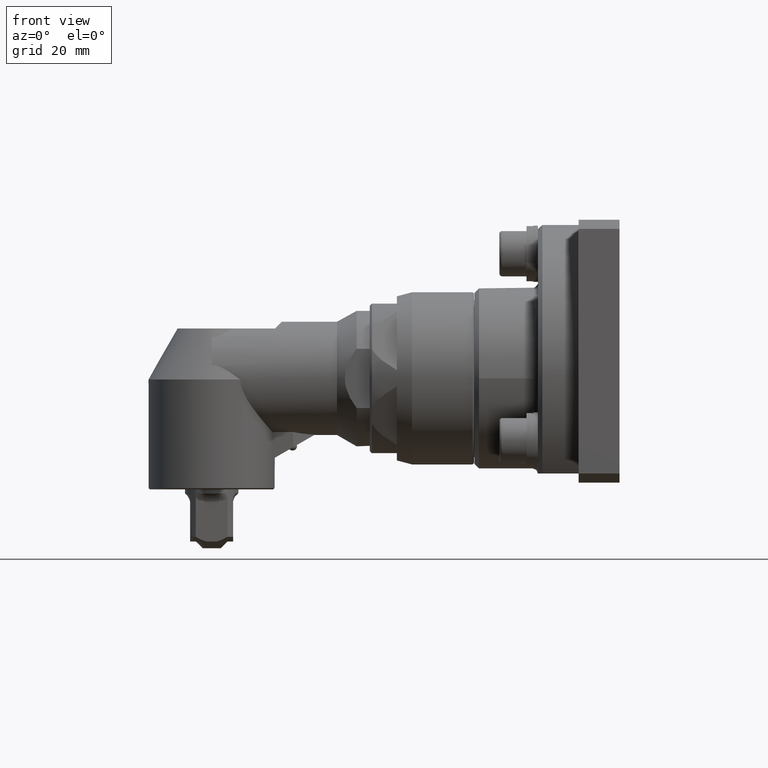
[diagram: clean part render]
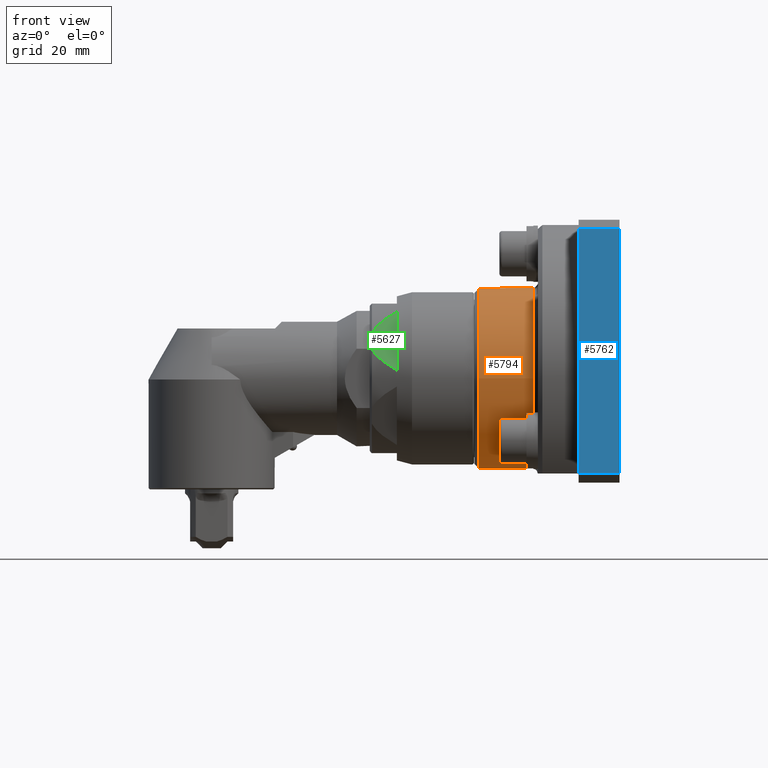
[diagram: same view with three faces highlighted in distinct colors, each labeled with its STEP entity id]
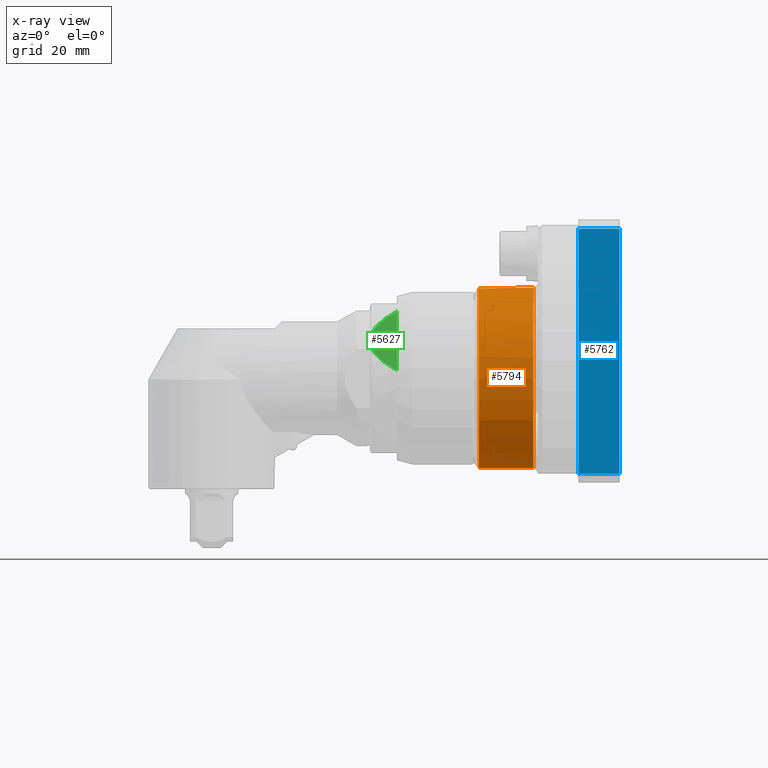
[diagram: x-ray of the same camera — body ghosted, the three highlighted faces saturated]
A machine part, front view with three faces highlighted in distinct colors.
The next image is the same camera in x-ray (body ghosted, the three faces saturated) — at least one of them is partly hidden behind the body in this view.
Their STEP definitions:

[orange] entity #5794 — the highlighted cylindrical surface (bore or boss wall) has radius 20 mm, axis along (1, 0, -0).
#547=LINE('',#10879,#888);
#888=VECTOR('',#8192,20.);
#980=CYLINDRICAL_SURFACE('',#6503,20.);
#1348=FACE_OUTER_BOUND('',#1726,.T.);
#1726=EDGE_LOOP('',(#5191,#5192,#5193,#5194,#5195,#5196,#5197));
#2120=CIRCLE('',#6499,20.);
#2122=CIRCLE('',#6501,20.);
#2123=CIRCLE('',#6502,20.);
#2124=CIRCLE('',#6504,20.);
#2125=CIRCLE('',#6505,20.);
#2695=VERTEX_POINT('',#10870);
#2696=VERTEX_POINT('',#10871);
#2697=VERTEX_POINT('',#10874);
#2698=VERTEX_POINT('',#10878);
#2699=VERTEX_POINT('',#10880);
#3541=EDGE_CURVE('',#2695,#2696,#2120,.T.);
#3543=EDGE_CURVE('',#2696,#2697,#2122,.T.);
#3544=EDGE_CURVE('',#2697,#2695,#2123,.T.);
#3545=EDGE_CURVE('',#2697,#2698,#547,.T.);
#3546=EDGE_CURVE('',#2699,#2698,#2124,.T.);
#3547=EDGE_CURVE('',#2698,#2699,#2125,.T.);
#5191=ORIENTED_EDGE('',*,*,#3541,.F.);
#5192=ORIENTED_EDGE('',*,*,#3544,.F.);
#5193=ORIENTED_EDGE('',*,*,#3545,.T.);
#5194=ORIENTED_EDGE('',*,*,#3546,.F.);
#5195=ORIENTED_EDGE('',*,*,#3547,.F.);
#5196=ORIENTED_EDGE('',*,*,#3545,.F.);
#5197=ORIENTED_EDGE('',*,*,#3543,.F.);
#5794=ADVANCED_FACE('',(#1348),#980,.T.);
#6499=AXIS2_PLACEMENT_3D('',#10872,#8182,#8183);
#6501=AXIS2_PLACEMENT_3D('',#10875,#8186,#8187);
#6502=AXIS2_PLACEMENT_3D('',#10876,#8188,#8189);
#6503=AXIS2_PLACEMENT_3D('',#10877,#8190,#8191);
#6504=AXIS2_PLACEMENT_3D('',#10881,#8193,#8194);
#6505=AXIS2_PLACEMENT_3D('',#10882,#8195,#8196);
#8182=DIRECTION('center_axis',(1.,2.10399244551776E-17,-1.35308431126191E-15));
#8183=DIRECTION('ref_axis',(2.10399244551779E-17,-1.,1.83697019872103E-16));
#8186=DIRECTION('center_axis',(1.,2.10399244551776E-17,-1.35308431126191E-15));
#8187=DIRECTION('ref_axis',(2.10399244551779E-17,-1.,1.83697019872103E-16));
#8188=DIRECTION('center_axis',(1.,2.10399244551776E-17,-1.35308431126191E-15));
#8189=DIRECTION('ref_axis',(2.10399244551779E-17,-1.,1.83697019872103E-16));
#8190=DIRECTION('center_axis',(1.,2.10399244551776E-17,-1.35308431126191E-15));
#8191=DIRECTION('ref_axis',(-2.10399244551776E-17,1.,-6.9406817127727E-32));
#8192=DIRECTION('',(-1.,-2.10399244551776E-17,1.35308431126191E-15));
#8193=DIRECTION('center_axis',(-1.,-2.10399244551776E-17,1.35308431126191E-15));
#8194=DIRECTION('ref_axis',(2.10399244551776E-17,-1.,6.9406817127727E-32));
#8195=DIRECTION('center_axis',(-1.,-2.10399244551776E-17,1.35308431126191E-15));
#8196=DIRECTION('ref_axis',(2.10399244551776E-17,-1.,6.9406817127727E-32));
#10870=CARTESIAN_POINT('',(71.,20.,-9.7293632898743E-14));
#10871=CARTESIAN_POINT('',(71.,5.04608694048823E-15,19.9999999999999));
#10872=CARTESIAN_POINT('Origin',(71.,7.49538053878293E-15,-9.60689860995956E-14));
#10874=CARTESIAN_POINT('',(71.,-20.,-9.85182796978903E-14));
#10875=CARTESIAN_POINT('Origin',(71.,7.49538053878293E-15,-9.60689860995956E-14));
#10876=CARTESIAN_POINT('Origin',(71.,7.49538053878293E-15,-9.60689860995956E-14));
#10877=CARTESIAN_POINT('Origin',(65.,7.36914099205187E-15,-8.79504802320242E-14));
#10878=CARTESIAN_POINT('',(59.,-20.,-8.22812679627474E-14));
#10879=CARTESIAN_POINT('',(65.,-20.,-9.03997738303189E-14));
#10880=CARTESIAN_POINT('',(59.,20.,-8.22812679627474E-14));
#10881=CARTESIAN_POINT('Origin',(59.,7.2429014453208E-15,-7.98319743644527E-14));
#10882=CARTESIAN_POINT('Origin',(59.,7.2429014453208E-15,-7.98319743644527E-14));

[blue] entity #5762 — the highlighted planar face has unit normal (0, -1, -0).
#493=LINE('',#10550,#834);
#497=LINE('',#10634,#838);
#504=LINE('',#10689,#845);
#508=LINE('',#10695,#849);
#834=VECTOR('',#7802,10.);
#838=VECTOR('',#7890,10.);
#845=VECTOR('',#7941,10.);
#849=VECTOR('',#7949,10.);
#1316=FACE_OUTER_BOUND('',#1691,.T.);
#1691=EDGE_LOOP('',(#5043,#5044,#5045,#5046));
#2591=VERTEX_POINT('',#10536);
#2597=VERTEX_POINT('',#10548);
#2633=VERTEX_POINT('',#10630);
#2635=VERTEX_POINT('',#10633);
#3386=EDGE_CURVE('',#2597,#2591,#493,.T.);
#3424=EDGE_CURVE('',#2635,#2633,#497,.T.);
#3452=EDGE_CURVE('',#2591,#2633,#504,.T.);
#3456=EDGE_CURVE('',#2635,#2597,#508,.T.);
#5043=ORIENTED_EDGE('',*,*,#3452,.F.);
#5044=ORIENTED_EDGE('',*,*,#3386,.F.);
#5045=ORIENTED_EDGE('',*,*,#3456,.F.);
#5046=ORIENTED_EDGE('',*,*,#3424,.T.);
#5482=PLANE('',#6441);
#5762=ADVANCED_FACE('',(#1316),#5482,.T.);
#6441=AXIS2_PLACEMENT_3D('',#10765,#8046,#8047);
#7802=DIRECTION('',(1.35308431126191E-15,-1.85987395355926E-16,1.));
#7890=DIRECTION('',(1.35308431126191E-15,-1.85987395355926E-16,1.));
#7941=DIRECTION('',(1.,2.10399244551776E-17,-1.35308431126191E-15));
#7949=DIRECTION('',(-1.,-2.10399244551776E-17,1.35308431126191E-15));
#8046=DIRECTION('center_axis',(2.10399244551774E-17,-1.,-1.85987395355926E-16));
#8047=DIRECTION('ref_axis',(1.35308431126191E-15,-1.85987395355926E-16,
1.));
#10536=CARTESIAN_POINT('',(81.,-50.,32.9999999999999));
#10548=CARTESIAN_POINT('',(81.,-50.,-21.0000000000001));
#10550=CARTESIAN_POINT('',(80.9999999999999,-50.,-23.0000000000001));
#10630=CARTESIAN_POINT('',(90.,-50.,32.9999999999999));
#10633=CARTESIAN_POINT('',(89.9999999999999,-50.,-21.0000000000001));
#10634=CARTESIAN_POINT('',(89.9999999999999,-50.,-23.0000000000001));
#10689=CARTESIAN_POINT('',(90.,-50.,32.9999999999999));
#10695=CARTESIAN_POINT('',(89.9999999999999,-50.,-21.0000000000001));
#10765=CARTESIAN_POINT('Origin',(89.9999999999999,-50.,-23.0000000000001));

[green] entity #5627 — the highlighted planar face has unit normal (0, 0.866, -0.5).
#65=(
BOUNDED_CURVE()
B_SPLINE_CURVE(2,(#9649,#9650,#9651),.UNSPECIFIED.,.F.,.F.)
B_SPLINE_CURVE_WITH_KNOTS((3,3),(1.54224010790042,2.07247856298551),
 .UNSPECIFIED.)
CURVE()
GEOMETRIC_REPRESENTATION_ITEM()
RATIONAL_B_SPLINE_CURVE((1.21702598440827,1.22657112086732,1.21702598440827))
REPRESENTATION_ITEM('')
);
#66=(
BOUNDED_CURVE()
B_SPLINE_CURVE(2,(#9653,#9654,#9655),.UNSPECIFIED.,.F.,.F.)
B_SPLINE_CURVE_WITH_KNOTS((3,3),(0.,0.703924994095282),.UNSPECIFIED.)
CURVE()
GEOMETRIC_REPRESENTATION_ITEM()
RATIONAL_B_SPLINE_CURVE((1.,1.01720711204782,1.00981159072585))
REPRESENTATION_ITEM('')
);
#67=(
BOUNDED_CURVE()
B_SPLINE_CURVE(2,(#9658,#9659,#9660),.UNSPECIFIED.,.F.,.F.)
B_SPLINE_CURVE_WITH_KNOTS((3,3),(1.26537903358334,1.96930402767856),
 .UNSPECIFIED.)
CURVE()
GEOMETRIC_REPRESENTATION_ITEM()
RATIONAL_B_SPLINE_CURVE((1.00981159072585,1.01720711204783,1.))
REPRESENTATION_ITEM('')
);
#342=LINE('',#9657,#683);
#683=VECTOR('',#7315,10.);
#1181=FACE_OUTER_BOUND('',#1514,.T.);
#1514=EDGE_LOOP('',(#4267,#4268,#4269,#4270));
#2405=VERTEX_POINT('',#9647);
#2406=VERTEX_POINT('',#9648);
#2407=VERTEX_POINT('',#9652);
#2408=VERTEX_POINT('',#9656);
#3101=EDGE_CURVE('',#2405,#2406,#65,.T.);
#3102=EDGE_CURVE('',#2407,#2405,#66,.T.);
#3103=EDGE_CURVE('',#2407,#2408,#342,.T.);
#3104=EDGE_CURVE('',#2406,#2408,#67,.T.);
#4267=ORIENTED_EDGE('',*,*,#3101,.F.);
#4268=ORIENTED_EDGE('',*,*,#3102,.F.);
#4269=ORIENTED_EDGE('',*,*,#3103,.T.);
#4270=ORIENTED_EDGE('',*,*,#3104,.F.);
#5409=PLANE('',#6167);
#5627=ADVANCED_FACE('',(#1181),#5409,.F.);
#6167=AXIS2_PLACEMENT_3D('',#9646,#7313,#7314);
#7313=DIRECTION('center_axis',(7.2946214305317E-14,0.866025403784438,-0.500000000000001));
#7314=DIRECTION('ref_axis',(4.34407434816647E-14,0.500000000000001,0.866025403784438));
#7315=DIRECTION('',(4.34407434816647E-14,0.500000000000001,0.866025403784438));
#9646=CARTESIAN_POINT('Origin',(34.8999999999979,-18.99978008279,0.0914155639595692));
#9647=CARTESIAN_POINT('',(35.3829629131428,-15.3247042763922,6.45683358230781));
#9648=CARTESIAN_POINT('',(35.3829629131431,-13.2541340484793,10.0431664176925));
#9649=CARTESIAN_POINT('Ctrl Pts',(35.3829629131428,-15.3247042763922,6.45683358230781));
#9650=CARTESIAN_POINT('Ctrl Pts',(35.1851368196748,-14.2894191624342,8.25000000000271));
#9651=CARTESIAN_POINT('Ctrl Pts',(35.3829629131431,-13.2541340484793,10.0431664176925));
#9652=CARTESIAN_POINT('',(40.899999999998,-18.0189842782187,1.79020372932831));
#9653=CARTESIAN_POINT('Ctrl Pts',(40.899999999998,-18.0189842782187,1.7902037293283));
#9654=CARTESIAN_POINT('Ctrl Pts',(36.5816797864492,-16.6145148675517,4.22281610627926));
#9655=CARTESIAN_POINT('Ctrl Pts',(35.3829629131428,-15.3247042763922,6.45683358230781));
#9656=CARTESIAN_POINT('',(40.8999999999987,-10.5598540466539,14.7097962706715));
#9657=CARTESIAN_POINT('',(40.8999999999987,-9.57905824208214,16.4085844360403));
#9658=CARTESIAN_POINT('Ctrl Pts',(35.3829629131432,-13.2541340484793,10.0431664176925));
#9659=CARTESIAN_POINT('Ctrl Pts',(36.5816797864501,-11.9643234573201,12.2771838937208));
#9660=CARTESIAN_POINT('Ctrl Pts',(40.8999999999987,-10.5598540466539,14.7097962706715));